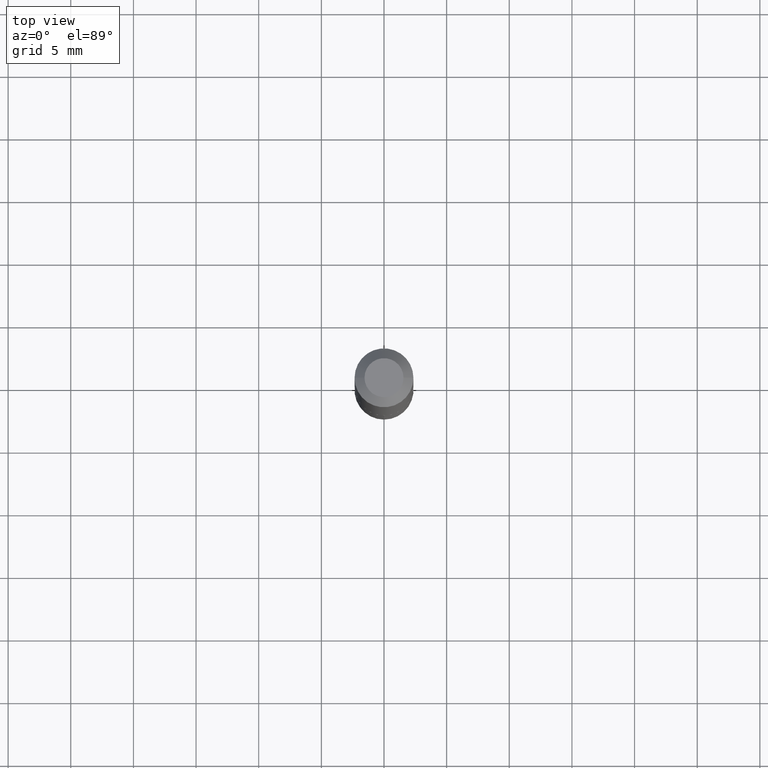
[diagram: clean part render]
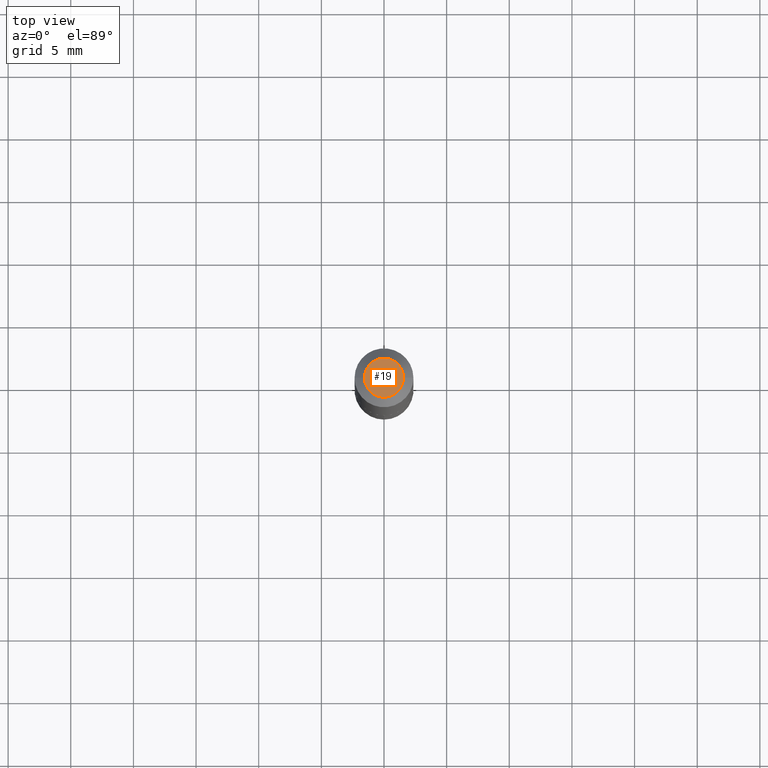
[diagram: same view with one face highlighted and labeled with its STEP entity id]
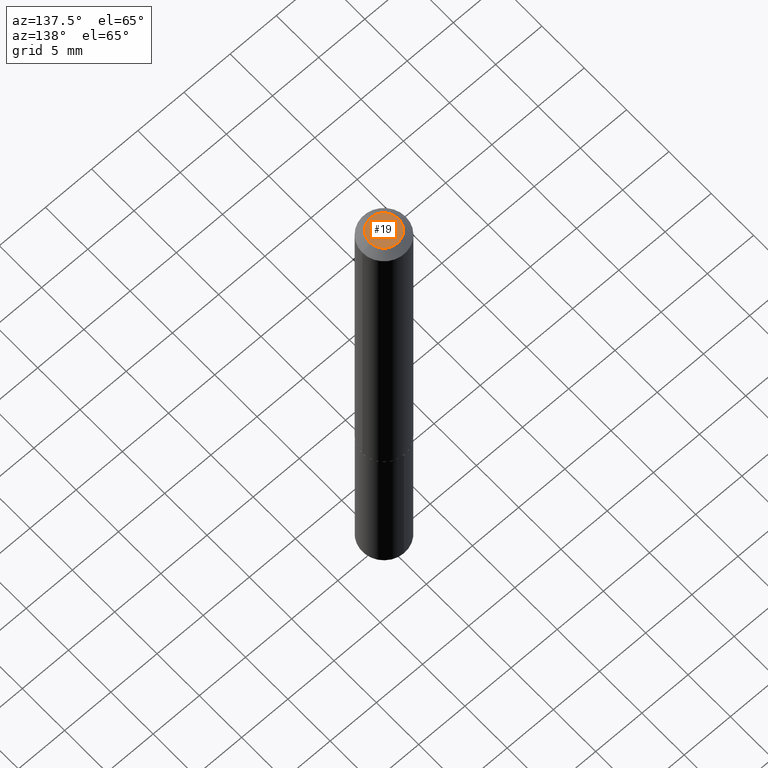
[diagram: same view with one face highlighted and labeled with its STEP entity id]
A machine part, top view. The second image highlights one B-rep face of the part: STEP entity #19.
A second angle (auxiliary view) of the same face is appended — the face is thin or edge-on in the first view.
In plain terms, the highlighted planar face has unit normal (0, -0, -1).
Its self-contained STEP definition (entity closure, byte-faithful):
#7 = VERTEX_POINT ( 'NONE', #26 ) ;
#16 = EDGE_LOOP ( 'NONE', ( #67, #93 ) ) ;
#19 = ADVANCED_FACE ( 'NONE', ( #357 ), #204, .F. ) ;
#26 = CARTESIAN_POINT ( 'NONE',  ( 0.06125000000000000583, -5.819551794981109879E-16, 2.388061258372631621E-19 ) ) ;
#34 = AXIS2_PLACEMENT_3D ( 'NONE', #324, #330, #292 ) ;
#67 = ORIENTED_EDGE ( 'NONE', *, *, #291, .T. ) ;
#70 = AXIS2_PLACEMENT_3D ( 'NONE', #319, #132, #136 ) ;
#85 = CARTESIAN_POINT ( 'NONE',  ( -0.06125000000000000583, 4.822608599277072228E-16, 2.388061258305517296E-19 ) ) ;
#93 = ORIENTED_EDGE ( 'NONE', *, *, #208, .T. ) ;
#97 = AXIS2_PLACEMENT_3D ( 'NONE', #140, #263, #174 ) ;
#132 = DIRECTION ( 'NONE',  ( 2.438088387897960049E-29, -3.491481338843145188E-15, -1.000000000000000000 ) ) ;
#136 = DIRECTION ( 'NONE',  ( -1.000000000000000000, 6.982962677686265922E-15, -4.876176775795935793E-29 ) ) ;
#140 = CARTESIAN_POINT ( 'NONE',  ( -5.839929314523175409E-48, 8.337871319499082469E-34, 2.388061258337334140E-19 ) ) ;
#174 = DIRECTION ( 'NONE',  ( 1.000000000000000000, -6.982962677686267499E-15, 4.876190086226892022E-29 ) ) ;
#204 = PLANE ( 'NONE',  #70 ) ;
#206 = CIRCLE ( 'NONE', #34, 0.06125000000000000583 ) ;
#208 = EDGE_CURVE ( 'NONE', #7, #273, #206, .T. ) ;
#263 = DIRECTION ( 'NONE',  ( -2.445468806185136597E-29, 3.491481338843145583E-15, 1.000000000000000000 ) ) ;
#273 = VERTEX_POINT ( 'NONE', #85 ) ;
#279 = CIRCLE ( 'NONE', #97, 0.06125000000000000583 ) ;
#291 = EDGE_CURVE ( 'NONE', #273, #7, #279, .T. ) ;
#292 = DIRECTION ( 'NONE',  ( 1.000000000000000000, -6.982962677686267499E-15, 4.876190086226892022E-29 ) ) ;
#319 = CARTESIAN_POINT ( 'NONE',  ( -2.919964657261587705E-48, 4.168935659749541235E-34, 1.194030629168667070E-19 ) ) ;
#324 = CARTESIAN_POINT ( 'NONE',  ( -5.839929314523175409E-48, 8.337871319499082469E-34, 2.388061258337334140E-19 ) ) ;
#330 = DIRECTION ( 'NONE',  ( -2.445468806185136597E-29, 3.491481338843145583E-15, 1.000000000000000000 ) ) ;
#357 = FACE_OUTER_BOUND ( 'NONE', #16, .T. ) ;